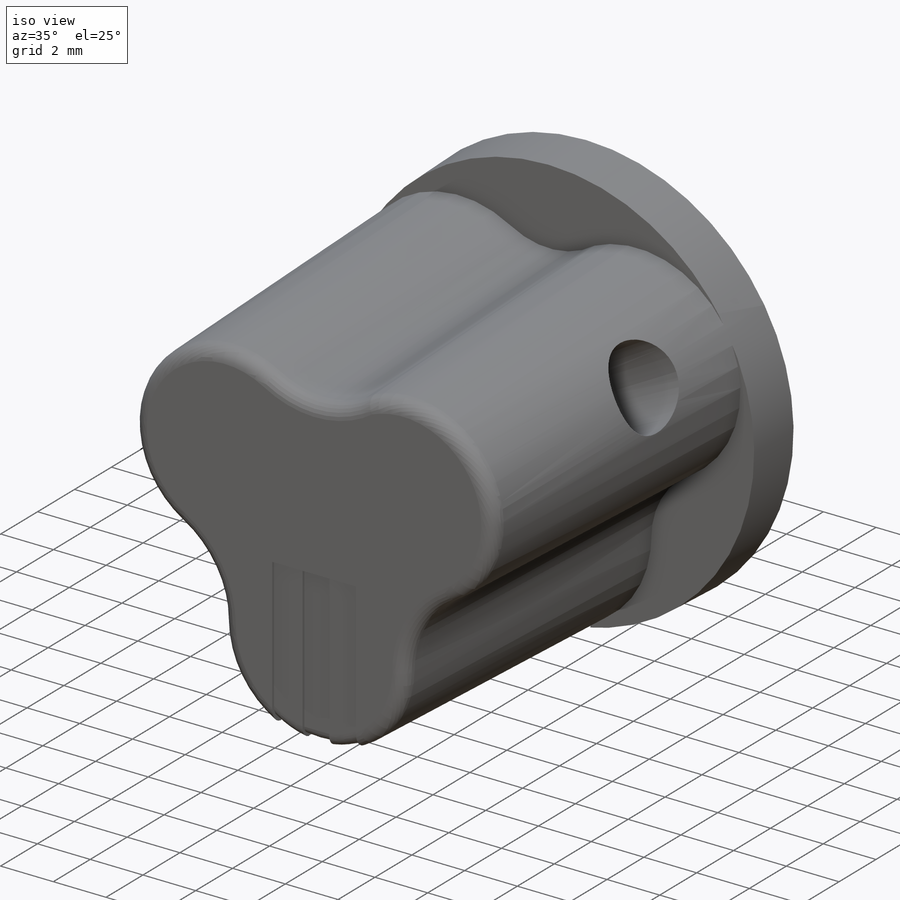
[diagram: iso view]
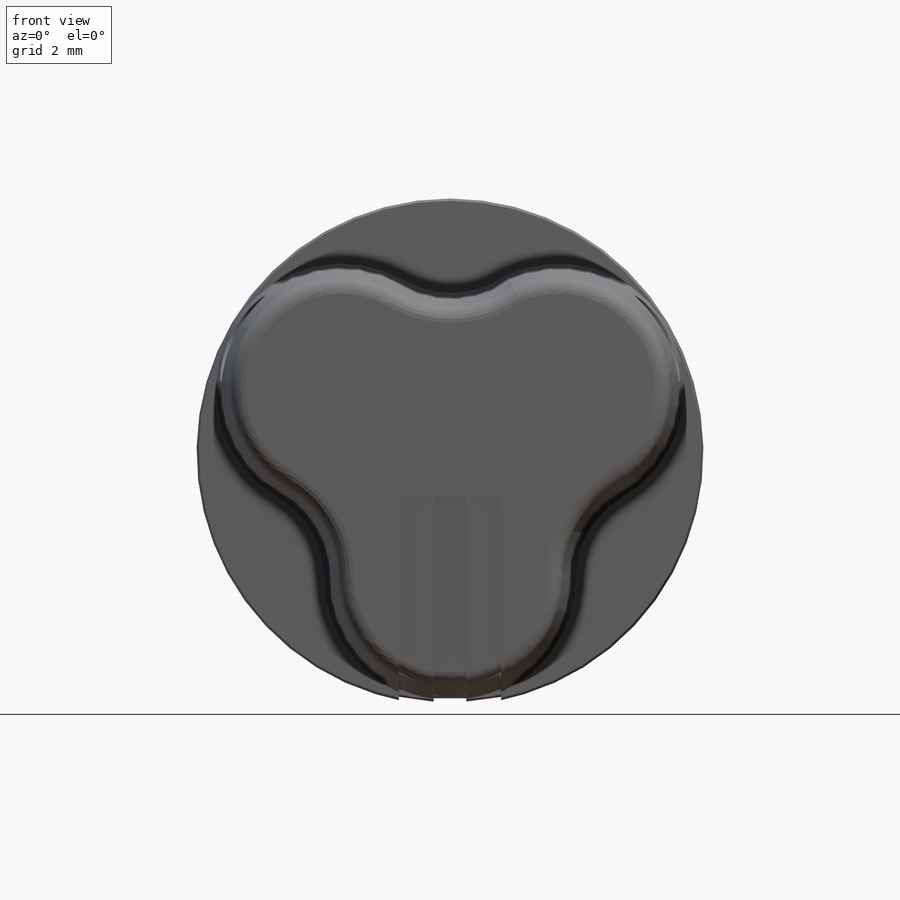
[diagram: front view]
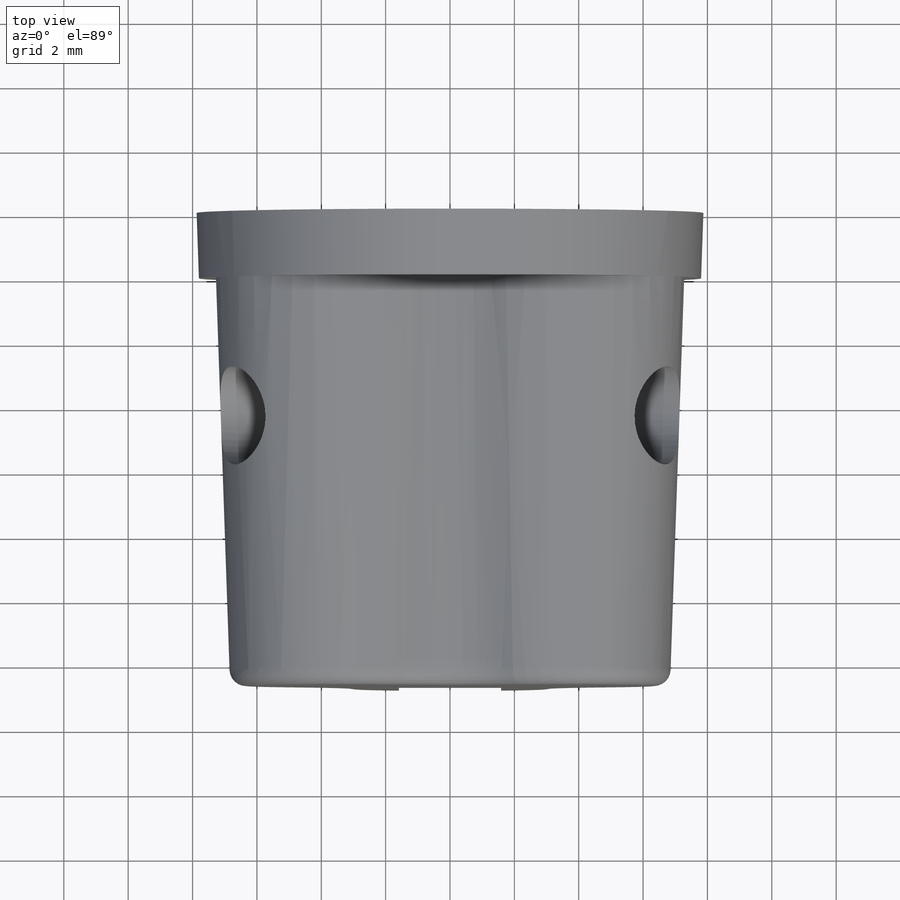
[diagram: top view]
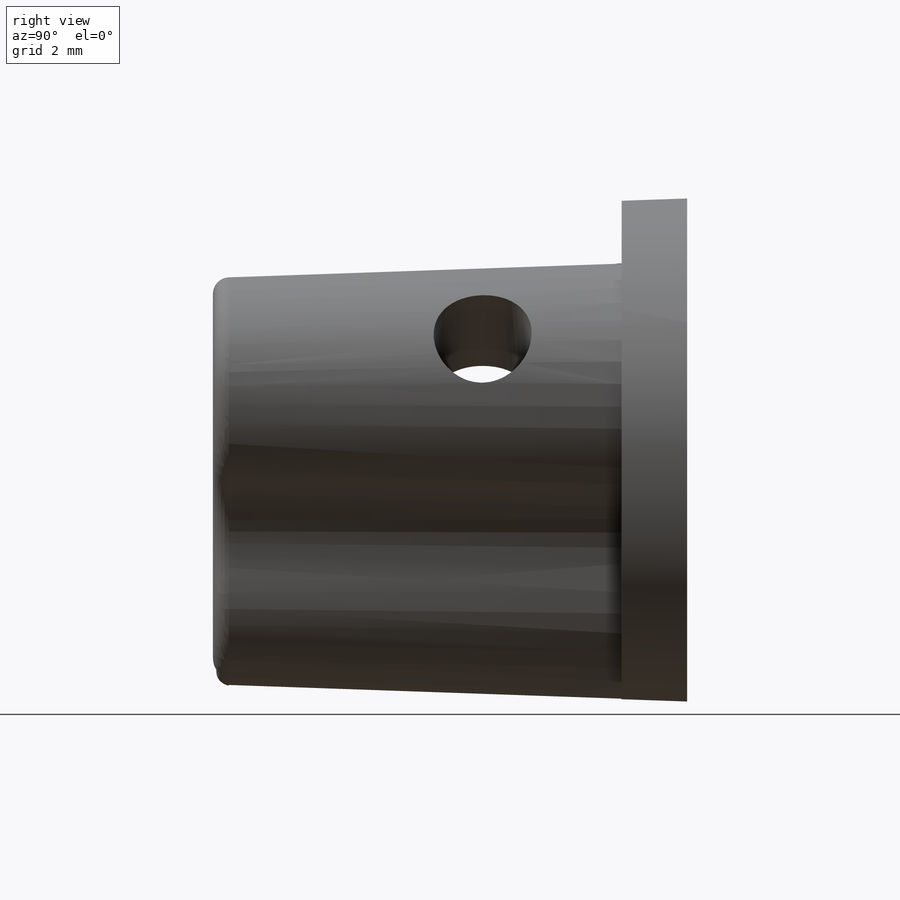
[diagram: right view]
SOLIDWORKS PART (.sldprt)
format: sldprt  version: not decoded by parser v0  size: 623,104 bytes
history: native  units: mm
features: sketch x18, plane x9, cut_extrude x7, extrude x2, mirror x2, sweep x2, material x1, fillet x1 (+11 scaffold rows collapsed)
feature tree (53):
  scaffold x11  (default folders/planes/origin — collapsed)
  material  "PMMA"
  sketch  "Skica2"  dims[D1=15.748mm]
  extrude  "Přidat vysunutím2"  Depth=2.032mm
  sketch  "Skica38"  dims[D1=6.35mm]
  cut_extrude  "Odebrat vysunutím35"  Depth=12.7mm
  sketch  "Skica39"  dims[D1=8.636mm]
  cut_extrude  "Odebrat vysunutím36"  Depth=2.032mm
  plane  "Rovina3"  Offset=2.032mm
  sketch  "Skica41"  dims[c1.D1=~4.569022mm c2.D1=120.0deg c2.D2=~7.128552mm c3.D2=120.0deg]
  extrude  "Přidat vysunutím3"  Depth=12.7mm
  fillet  "Zaoblit3"  Radius=0.508mm
  plane  "Rovina5"
  sketch  "Skica45"  dims[D1=6.35mm D2=2.7432mm]
  cut_extrude  "Odebrat vysunutím39"  Depth=12.7mm
  sketch  "Skica46"  dims[D1=1.5875mm D2=1.5875mm]
  cut_extrude  "Odebrat vysunutím40"  Depth=0.1016mm
  sketch  "Skica47"  dims[D1=0.508mm D2=0.508mm]
  cut_extrude  "Odebrat vysunutím41"  Depth=0.1016mm
  plane  "Rovina6"
  sketch  "Skica48"
  plane  "Rovina7"
  sketch  "Skica49"  dims[c1.D1=0.1016mm c1.D2=1.5875mm c2.D1=0.1016mm]
  cut_extrude  "Odebrat vysunutím43"  Depth=2.54mm
  plane  "Rovina8"  Offset=1.778mm
  sketch  "Skica50"  dims[c1.D1=7.874mm c1.D2=7.874mm c1.D3=7.6708mm c2.D1=~0.490271mm c2.D2=0.1016mm c2.D3=0.1016mm c2.D4=0.508mm]
  sketch  "Skica52"
  plane  "Rovina10"
  sketch  "Skica53"  dims[c1.D1=~0.861637mm c1.D2=0.762mm c2.D1=6.35mm]
  cut_extrude  "Odebrat vysunutím46"  [1 undecoded]
  mirror  "Zrcadlit1"
  plane  "Rovina13"
  plane  "Rovina14"  Offset=14.24178mm
  sketch  "Skica69"  dims[c1.D1=~6.950295mm c1.D2=~6.950295mm c1.D3=~6.950295mm c2.D1=~6.950295mm c2.D3=~6.747095mm c3.D1=~0.302364mm c3.D3=~0.302364mm c4.D1=0.1016mm c4.D3=0.1016mm c4.D4=0.508mm]
  sketch  "Skica75"
  sweep  "Odebrat tažením po křivce15"
  sweep  "Odebrat tažením po křivce16"
  sketch  "Skica75<2>"
  sketch  "Skica76"  dims[D1=0.0mm D2=0.254mm D3=0.254mm]
  sketch  "Skica77"
  plane  "Rovina20"
  sketch  "Skica78"
  mirror  "Odebrat spojením profilů7"
decode coverage: 21 of 32 modeling features carry decoded parameters
note: ~ marks probable driven/reference dimensions
note: 1 parameter value undecoded
note: suppression state not decoded; provenance and decode notes live in map.json
